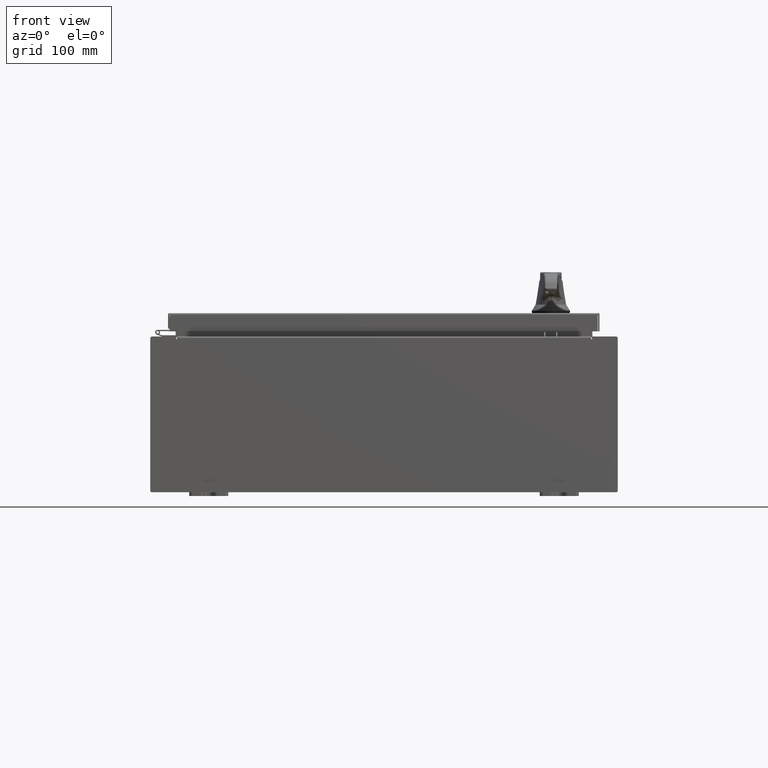
[diagram: clean part render]
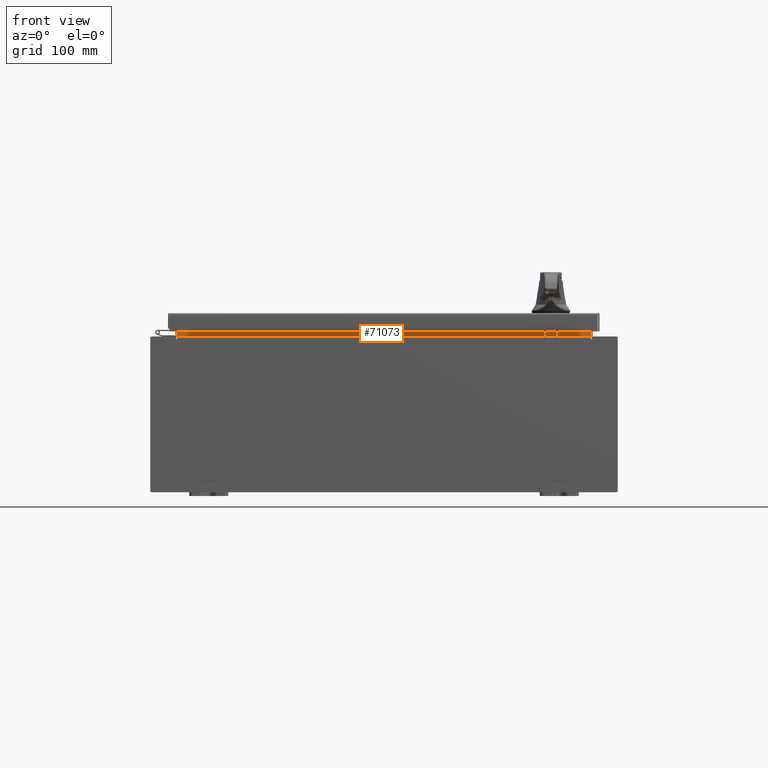
[diagram: same view with one face highlighted and labeled with its STEP entity id]
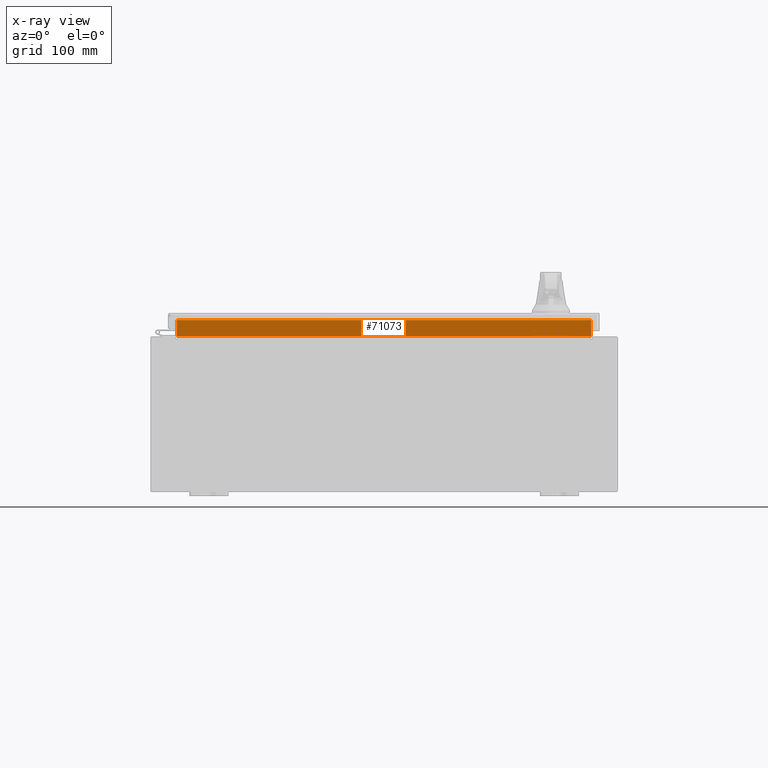
[diagram: x-ray of the same camera — body ghosted, the highlighted face saturated]
A machine part, front view. The second image highlights one B-rep face of the part: STEP entity #71073.
The next image is the same camera in x-ray: the body ghosted, the highlighted face saturated — about 0% of this face is hidden behind the body in this view.
In plain terms, the highlighted planar face has unit normal (0, -1, 0).
Its self-contained STEP definition (entity closure, byte-faithful):
#2072 = DIRECTION ( 'NONE',  ( 1.000000000000000000, 0.0000000000000000000, -2.568202152506545800E-017 ) ) ;
#5288 = FACE_OUTER_BOUND ( 'NONE', #97932, .T. ) ;
#6841 = PLANE ( 'NONE',  #69784 ) ;
#9193 = EDGE_CURVE ( 'NONE', #47717, #66976, #37783, .T. ) ;
#9401 = EDGE_CURVE ( 'NONE', #64924, #47717, #24302, .T. ) ;
#10318 = CARTESIAN_POINT ( 'NONE',  ( 10.63720000000000200, -1.300299999999999800, 4.837600000000003700 ) ) ;
#10765 = CARTESIAN_POINT ( 'NONE',  ( -10.63720000000000200, -1.300299999999999800, 4.013000000000003500 ) ) ;
#12120 = VECTOR ( 'NONE', #2072, 39.37007874015748100 ) ;
#16062 = EDGE_CURVE ( 'NONE', #66976, #62939, #23682, .T. ) ;
#18318 = EDGE_CURVE ( 'NONE', #62939, #64924, #72577, .T. ) ;
#21581 = VECTOR ( 'NONE', #90626, 39.37007874015748100 ) ;
#23682 = LINE ( 'NONE', #50095, #90035 ) ;
#24225 = CARTESIAN_POINT ( 'NONE',  ( 0.0000000000000000000, -1.300299999999999800, 0.0000000000000000000 ) ) ;
#24302 = LINE ( 'NONE', #38687, #21581 ) ;
#25475 = ORIENTED_EDGE ( 'NONE', *, *, #9401, .F. ) ;
#32895 = DIRECTION ( 'NONE',  ( 0.0000000000000000000, -0.0000000000000000000, 1.000000000000000000 ) ) ;
#37021 = CARTESIAN_POINT ( 'NONE',  ( -10.63720000000000400, -1.300299999999999800, 4.013000000000003500 ) ) ;
#37783 = LINE ( 'NONE', #10765, #12120 ) ;
#38687 = CARTESIAN_POINT ( 'NONE',  ( -10.63720000000000200, -1.300299999999999800, 4.000000000000004400 ) ) ;
#43628 = DIRECTION ( 'NONE',  ( -1.000000000000000000, -0.0000000000000000000, -0.0000000000000000000 ) ) ;
#47717 = VERTEX_POINT ( 'NONE', #37021 ) ;
#50095 = CARTESIAN_POINT ( 'NONE',  ( 10.63720000000000200, -1.300299999999999800, 4.925300000000004500 ) ) ;
#52417 = ORIENTED_EDGE ( 'NONE', *, *, #9193, .F. ) ;
#57086 = ORIENTED_EDGE ( 'NONE', *, *, #18318, .F. ) ;
#62939 = VERTEX_POINT ( 'NONE', #10318 ) ;
#64924 = VERTEX_POINT ( 'NONE', #85491 ) ;
#66976 = VERTEX_POINT ( 'NONE', #73252 ) ;
#67210 = DIRECTION ( 'NONE',  ( -0.0000000000000000000, -0.0000000000000000000, 1.000000000000000000 ) ) ;
#69784 = AXIS2_PLACEMENT_3D ( 'NONE', #24225, #84768, #32895 ) ;
#71073 = ADVANCED_FACE ( 'NONE', ( #5288 ), #6841, .T. ) ;
#72577 = LINE ( 'NONE', #104301, #95693 ) ;
#73252 = CARTESIAN_POINT ( 'NONE',  ( 10.63720000000000400, -1.300299999999999800, 4.013000000000003500 ) ) ;
#77451 = ORIENTED_EDGE ( 'NONE', *, *, #16062, .F. ) ;
#84768 = DIRECTION ( 'NONE',  ( 0.0000000000000000000, 1.000000000000000000, 0.0000000000000000000 ) ) ;
#85491 = CARTESIAN_POINT ( 'NONE',  ( -10.63720000000000200, -1.300299999999999300, 4.837600000000003700 ) ) ;
#90035 = VECTOR ( 'NONE', #67210, 39.37007874015748100 ) ;
#90626 = DIRECTION ( 'NONE',  ( -0.0000000000000000000, -0.0000000000000000000, -1.000000000000000000 ) ) ;
#95693 = VECTOR ( 'NONE', #43628, 39.37007874015748100 ) ;
#97932 = EDGE_LOOP ( 'NONE', ( #25475, #57086, #77451, #52417 ) ) ;
#104301 = CARTESIAN_POINT ( 'NONE',  ( 10.63720000000000200, -1.300299999999999300, 4.837600000000003700 ) ) ;